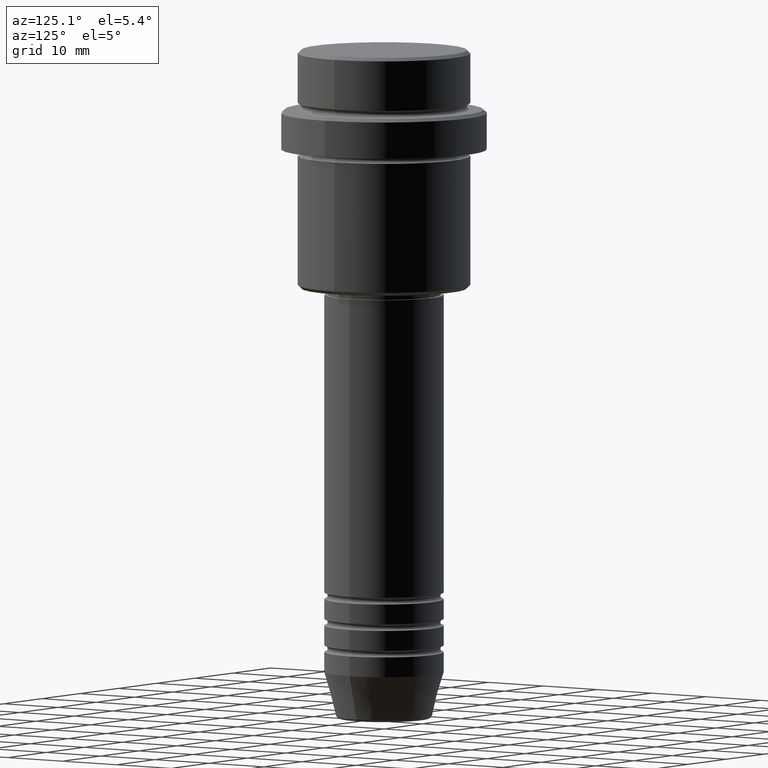
[diagram: clean part render]
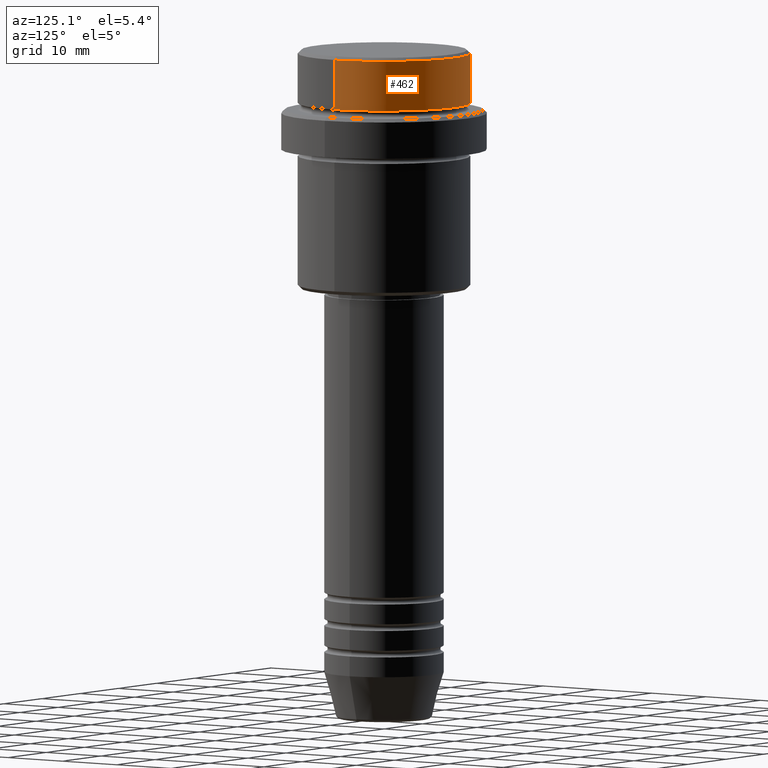
[diagram: same view with one face highlighted and labeled with its STEP entity id]
A machine part, auxiliary view. The second image highlights one B-rep face of the part: STEP entity #462.
In plain terms, the highlighted cylindrical surface (partial cylindrical patch) has radius 13 mm, axis along (-0, -0, 1).
Its self-contained STEP definition (entity closure, byte-faithful):
#25 = EDGE_CURVE ( 'NONE', #668, #108, #517, .T. ) ;
#108 = VERTEX_POINT ( 'NONE', #1118 ) ;
#218 = VERTEX_POINT ( 'NONE', #1380 ) ;
#286 = AXIS2_PLACEMENT_3D ( 'NONE', #864, #1208, #739 ) ;
#288 = LINE ( 'NONE', #710, #1312 ) ;
#362 = LINE ( 'NONE', #688, #1242 ) ;
#374 = AXIS2_PLACEMENT_3D ( 'NONE', #633, #639, #662 ) ;
#449 = CIRCLE ( 'NONE', #286, 12.99999999999999822 ) ;
#458 = EDGE_CURVE ( 'NONE', #218, #963, #449, .T. ) ;
#462 = ADVANCED_FACE ( 'NONE', ( #553 ), #1304, .T. ) ;
#474 = CARTESIAN_POINT ( 'NONE',  ( -12.99999999999999822, 1.592040838891558898E-15, -0.4999999999999899525 ) ) ;
#482 = CARTESIAN_POINT ( 'NONE',  ( 0.000000000000000000, 0.000000000000000000, -0.4999999999999899525 ) ) ;
#517 = CIRCLE ( 'NONE', #804, 12.99999999999999822 ) ;
#553 = FACE_OUTER_BOUND ( 'NONE', #1132, .T. ) ;
#584 = ORIENTED_EDGE ( 'NONE', *, *, #25, .T. ) ;
#633 = CARTESIAN_POINT ( 'NONE',  ( 0.000000000000000000, 0.000000000000000000, 0.000000000000000000 ) ) ;
#639 = DIRECTION ( 'NONE',  ( -0.000000000000000000, -0.000000000000000000, 1.000000000000000000 ) ) ;
#662 = DIRECTION ( 'NONE',  ( 1.000000000000000000, 0.000000000000000000, 0.000000000000000000 ) ) ;
#668 = VERTEX_POINT ( 'NONE', #474 ) ;
#688 = CARTESIAN_POINT ( 'NONE',  ( 12.99999999999999822, 0.000000000000000000, 0.000000000000000000 ) ) ;
#710 = CARTESIAN_POINT ( 'NONE',  ( -12.99999999999999822, 1.592040838891558898E-15, 0.000000000000000000 ) ) ;
#726 = ORIENTED_EDGE ( 'NONE', *, *, #928, .T. ) ;
#732 = DIRECTION ( 'NONE',  ( -0.000000000000000000, -0.000000000000000000, 1.000000000000000000 ) ) ;
#739 = DIRECTION ( 'NONE',  ( 1.000000000000000000, 0.000000000000000000, 0.000000000000000000 ) ) ;
#804 = AXIS2_PLACEMENT_3D ( 'NONE', #482, #1146, #1364 ) ;
#864 = CARTESIAN_POINT ( 'NONE',  ( 0.000000000000000000, 0.000000000000000000, -7.999999999999998224 ) ) ;
#928 = EDGE_CURVE ( 'NONE', #963, #668, #288, .T. ) ;
#963 = VERTEX_POINT ( 'NONE', #1143 ) ;
#1118 = CARTESIAN_POINT ( 'NONE',  ( 12.99999999999999822, 0.000000000000000000, -0.4999999999999899525 ) ) ;
#1132 = EDGE_LOOP ( 'NONE', ( #1269, #726, #584, #1342 ) ) ;
#1143 = CARTESIAN_POINT ( 'NONE',  ( -12.99999999999999822, 1.592040838891558898E-15, -7.999999999999998224 ) ) ;
#1146 = DIRECTION ( 'NONE',  ( 0.000000000000000000, 0.000000000000000000, -1.000000000000000000 ) ) ;
#1208 = DIRECTION ( 'NONE',  ( -0.000000000000000000, -0.000000000000000000, 1.000000000000000000 ) ) ;
#1242 = VECTOR ( 'NONE', #732, 1000.000000000000000 ) ;
#1269 = ORIENTED_EDGE ( 'NONE', *, *, #458, .T. ) ;
#1304 = CYLINDRICAL_SURFACE ( 'NONE', #374, 12.99999999999999822 ) ;
#1312 = VECTOR ( 'NONE', #1370, 1000.000000000000000 ) ;
#1342 = ORIENTED_EDGE ( 'NONE', *, *, #1369, .F. ) ;
#1364 = DIRECTION ( 'NONE',  ( 1.000000000000000000, 0.000000000000000000, 0.000000000000000000 ) ) ;
#1369 = EDGE_CURVE ( 'NONE', #218, #108, #362, .T. ) ;
#1370 = DIRECTION ( 'NONE',  ( -0.000000000000000000, -0.000000000000000000, 1.000000000000000000 ) ) ;
#1380 = CARTESIAN_POINT ( 'NONE',  ( 12.99999999999999822, 0.000000000000000000, -7.999999999999998224 ) ) ;